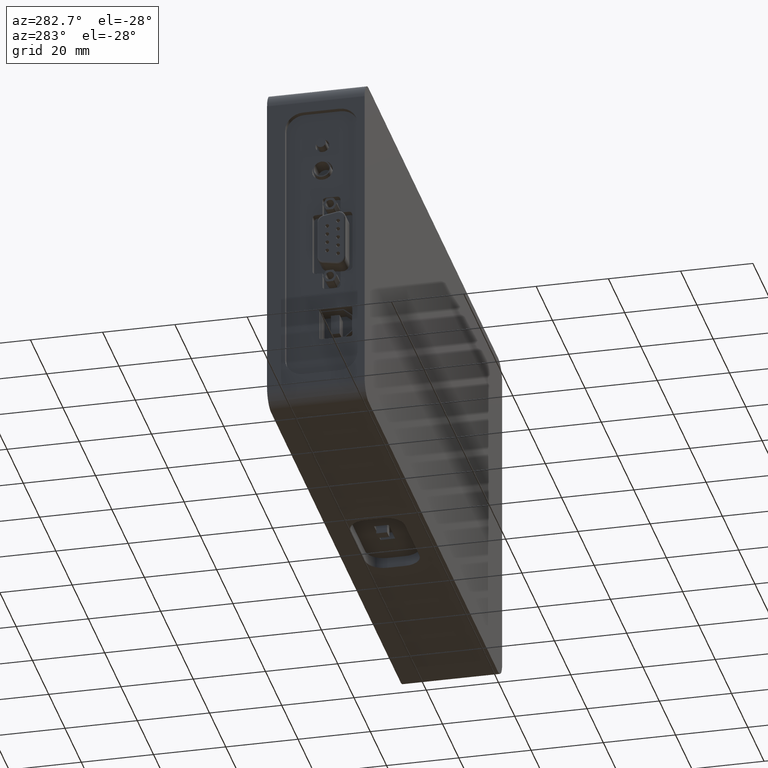
[diagram: clean part render]
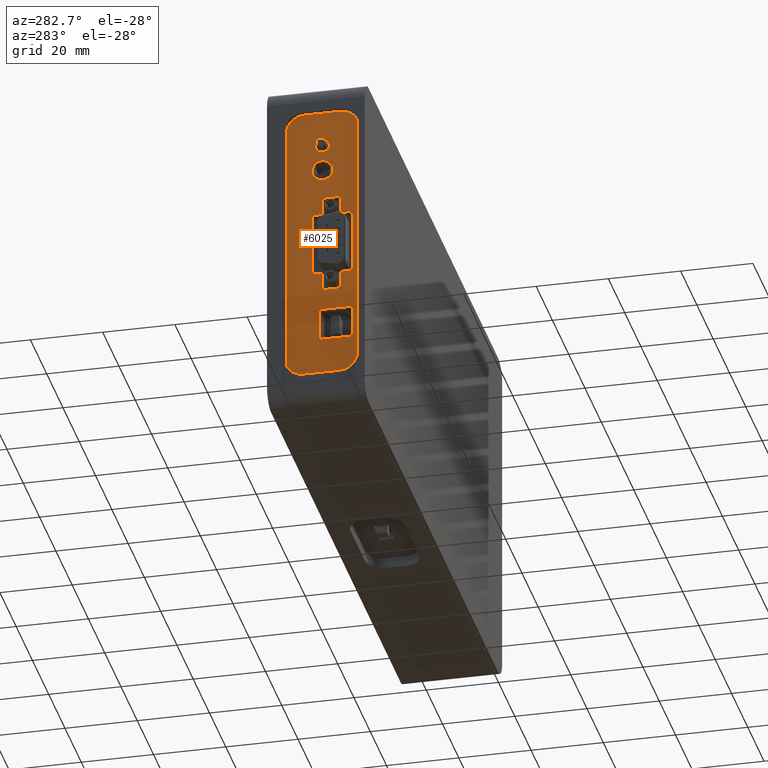
[diagram: same view with one face highlighted and labeled with its STEP entity id]
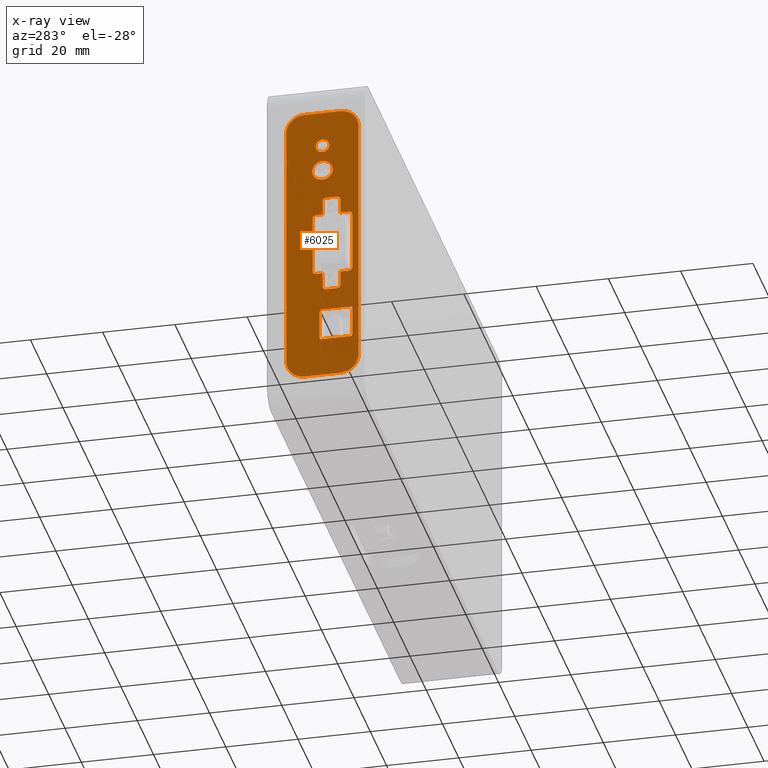
[diagram: x-ray of the same camera — body ghosted, the highlighted face saturated]
A machine part, auxiliary view. The second image highlights one B-rep face of the part: STEP entity #6025.
The next image is the same camera in x-ray: the body ghosted, the highlighted face saturated — about 0% of this face is hidden behind the body in this view.
In plain terms, the highlighted planar face has unit normal (1, 0, 0).
Its self-contained STEP definition (entity closure, byte-faithful):
#2 = EDGE_CURVE ( 'NONE', #4881, #1888, #2039, .T. ) ;
#11 = DIRECTION ( 'NONE',  ( 1.000000000000000000, 0.000000000000000000, 0.000000000000000000 ) ) ;
#24 = ORIENTED_EDGE ( 'NONE', *, *, #2897, .T. ) ;
#33 = ORIENTED_EDGE ( 'NONE', *, *, #2559, .F. ) ;
#37 = CARTESIAN_POINT ( 'NONE',  ( -83.00000000000000000, 7.000000000000000000, -4.500000000000000000 ) ) ;
#64 = VERTEX_POINT ( 'NONE', #6713 ) ;
#73 = EDGE_CURVE ( 'NONE', #5667, #8189, #6624, .T. ) ;
#94 = CARTESIAN_POINT ( 'NONE',  ( -83.00000000000000000, 12.70084974592717586, -28.95355339059327449 ) ) ;
#127 = VERTEX_POINT ( 'NONE', #3152 ) ;
#133 = DIRECTION ( 'NONE',  ( 0.000000000000000000, 1.000000000000000000, 0.000000000000000000 ) ) ;
#149 = DIRECTION ( 'NONE',  ( 0.000000000000000000, 0.7071067811865510144, 0.7071067811865441310 ) ) ;
#189 = LINE ( 'NONE', #8559, #6899 ) ;
#199 = CIRCLE ( 'NONE', #7355, 4.999999999999997335 ) ;
#202 = LINE ( 'NONE', #2267, #3244 ) ;
#221 = ORIENTED_EDGE ( 'NONE', *, *, #6468, .T. ) ;
#227 = EDGE_CURVE ( 'NONE', #4720, #8594, #2170, .T. ) ;
#230 = CARTESIAN_POINT ( 'NONE',  ( -83.00000000000000000, 4.040189574147312612, 8.707106781186546129 ) ) ;
#273 = EDGE_LOOP ( 'NONE', ( #8879, #8371, #3075, #1431, #7123, #7312, #4531, #33, #4779, #3983, #1724, #6395 ) ) ;
#278 = DIRECTION ( 'NONE',  ( 0.000000000000000000, 0.7071067811865484609, -0.7071067811865467956 ) ) ;
#312 = AXIS2_PLACEMENT_3D ( 'NONE', #392, #3188, #3466 ) ;
#319 = VECTOR ( 'NONE', #4511, 1000.000000000000000 ) ;
#327 = CARTESIAN_POINT ( 'NONE',  ( -83.00000000000000000, 17.00000000000000000, 35.00000000000000000 ) ) ;
#332 = CIRCLE ( 'NONE', #2827, 1.000000000000000666 ) ;
#342 = DIRECTION ( 'NONE',  ( 1.000000000000000000, 0.000000000000000000, 0.000000000000000000 ) ) ;
#347 = VERTEX_POINT ( 'NONE', #5873 ) ;
#351 = CARTESIAN_POINT ( 'NONE',  ( -83.00000000000000000, 14.45440313652044928, -8.707106781186546129 ) ) ;
#367 = CIRCLE ( 'NONE', #4617, 1.000000000000001332 ) ;
#376 = DIRECTION ( 'NONE',  ( 1.000000000000000000, 0.000000000000000000, 0.000000000000000000 ) ) ;
#392 = CARTESIAN_POINT ( 'NONE',  ( -83.00000000000000000, 8.000000000000000000, 13.00000000000000000 ) ) ;
#424 = VERTEX_POINT ( 'NONE', #3953 ) ;
#441 = DIRECTION ( 'NONE',  ( -1.000000000000000000, 0.000000000000000000, 0.000000000000000000 ) ) ;
#477 = AXIS2_PLACEMENT_3D ( 'NONE', #813, #3797, #6577 ) ;
#524 = DIRECTION ( 'NONE',  ( 0.000000000000000000, 0.000000000000000000, -1.000000000000000000 ) ) ;
#534 = DIRECTION ( 'NONE',  ( 0.000000000000000000, -0.7071067811865492381, 0.7071067811865457964 ) ) ;
#543 = DIRECTION ( 'NONE',  ( 0.000000000000000000, 0.7071067811865475727, 0.7071067811865475727 ) ) ;
#583 = DIRECTION ( 'NONE',  ( 0.000000000000000000, -6.167905692361979821E-17, -1.000000000000000000 ) ) ;
#609 = CARTESIAN_POINT ( 'NONE',  ( -83.00000000000000000, 12.00000000000000000, -8.165096986985870398E-15 ) ) ;
#633 = CARTESIAN_POINT ( 'NONE',  ( -83.00000000000000000, 7.292893218813452982, -13.70710678118654613 ) ) ;
#670 = EDGE_CURVE ( 'NONE', #8113, #1858, #2247, .T. ) ;
#677 = CARTESIAN_POINT ( 'NONE',  ( -83.00000000000000000, 3.747296355333860074, -8.000000000000000000 ) ) ;
#682 = VERTEX_POINT ( 'NONE', #8370 ) ;
#756 = AXIS2_PLACEMENT_3D ( 'NONE', #609, #8389, #4690 ) ;
#782 = DIRECTION ( 'NONE',  ( 0.000000000000000000, 0.000000000000000000, 1.000000000000000000 ) ) ;
#801 = ORIENTED_EDGE ( 'NONE', *, *, #1327, .F. ) ;
#803 = CIRCLE ( 'NONE', #8247, 1.000000000000001332 ) ;
#813 = CARTESIAN_POINT ( 'NONE',  ( -83.00000000000000000, 12.00000000000000000, 30.00000000000000000 ) ) ;
#848 = DIRECTION ( 'NONE',  ( 0.000000000000000000, -0.7071067811865471286, -0.7071067811865480168 ) ) ;
#871 = DIRECTION ( 'NONE',  ( 0.000000000000000000, 0.000000000000000000, 1.000000000000000000 ) ) ;
#894 = DIRECTION ( 'NONE',  ( 0.000000000000000000, -0.7071067811865471286, -0.7071067811865480168 ) ) ;
#930 = EDGE_CURVE ( 'NONE', #5667, #8083, #5335, .T. ) ;
#942 = DIRECTION ( 'NONE',  ( -1.000000000000000000, 0.000000000000000000, 0.000000000000000000 ) ) ;
#945 = CARTESIAN_POINT ( 'NONE',  ( -83.00000000000000000, 7.000000000000000000, 40.00000000000000000 ) ) ;
#1060 = VERTEX_POINT ( 'NONE', #633 ) ;
#1066 = LINE ( 'NONE', #3084, #319 ) ;
#1086 = CARTESIAN_POINT ( 'NONE',  ( -83.00000000000000000, 17.00000000000000000, -40.00000000000000000 ) ) ;
#1133 = CARTESIAN_POINT ( 'NONE',  ( -83.00000000000000000, 13.74729635533389960, 8.000000000000000000 ) ) ;
#1134 = EDGE_CURVE ( 'NONE', #3550, #5904, #8492, .T. ) ;
#1240 = AXIS2_PLACEMENT_3D ( 'NONE', #8348, #6397, #2044 ) ;
#1285 = ORIENTED_EDGE ( 'NONE', *, *, #7860, .F. ) ;
#1291 = VERTEX_POINT ( 'NONE', #1863 ) ;
#1298 = FACE_BOUND ( 'NONE', #6247, .T. ) ;
#1327 = EDGE_CURVE ( 'NONE', #4720, #5826, #4032, .T. ) ;
#1357 = DIRECTION ( 'NONE',  ( 1.000000000000000000, 0.000000000000000000, 0.000000000000000000 ) ) ;
#1383 = AXIS2_PLACEMENT_3D ( 'NONE', #7467, #6794, #524 ) ;
#1408 = LINE ( 'NONE', #1449, #4903 ) ;
#1431 = ORIENTED_EDGE ( 'NONE', *, *, #2616, .T. ) ;
#1449 = CARTESIAN_POINT ( 'NONE',  ( -83.00000000000000000, 12.84729635533390102, -14.55000000000000071 ) ) ;
#1505 = CARTESIAN_POINT ( 'NONE',  ( -83.00000000000000000, 7.873648177666930259, -9.000000000000000000 ) ) ;
#1535 = CIRCLE ( 'NONE', #7661, 0.4999999999999994449 ) ;
#1544 = LINE ( 'NONE', #4297, #5142 ) ;
#1584 = CARTESIAN_POINT ( 'NONE',  ( -83.00000000000000000, 4.040189574147312612, -8.707106781186547906 ) ) ;
#1625 = VERTEX_POINT ( 'NONE', #8576 ) ;
#1643 = VERTEX_POINT ( 'NONE', #3089 ) ;
#1649 = EDGE_CURVE ( 'NONE', #7842, #6325, #5424, .T. ) ;
#1678 = CIRCLE ( 'NONE', #1240, 1.000000000000001332 ) ;
#1684 = CARTESIAN_POINT ( 'NONE',  ( -83.00000000000000000, 13.74729635533389960, -9.000000000000000000 ) ) ;
#1724 = ORIENTED_EDGE ( 'NONE', *, *, #2084, .F. ) ;
#1744 = AXIS2_PLACEMENT_3D ( 'NONE', #2989, #4504, #4326 ) ;
#1760 = EDGE_CURVE ( 'NONE', #4141, #1060, #1971, .T. ) ;
#1770 = ORIENTED_EDGE ( 'NONE', *, *, #9025, .F. ) ;
#1800 = CARTESIAN_POINT ( 'NONE',  ( -83.00000000000000000, 3.893742964740585233, -20.14644660940672694 ) ) ;
#1820 = CIRCLE ( 'NONE', #6059, 0.4999999999999994449 ) ;
#1858 = VERTEX_POINT ( 'NONE', #8252 ) ;
#1863 = CARTESIAN_POINT ( 'NONE',  ( -83.00000000000000000, 12.34729635533389924, -20.00000000000000000 ) ) ;
#1876 = EDGE_CURVE ( 'NONE', #5797, #8189, #803, .T. ) ;
#1883 = CARTESIAN_POINT ( 'NONE',  ( -83.00000000000000000, 12.00000000000000000, 31.89999999999999858 ) ) ;
#1888 = VERTEX_POINT ( 'NONE', #2859 ) ;
#1902 = DIRECTION ( 'NONE',  ( -1.000000000000000000, 0.000000000000000000, 0.000000000000000000 ) ) ;
#1909 = EDGE_CURVE ( 'NONE', #5330, #64, #4158, .T. ) ;
#1910 = CARTESIAN_POINT ( 'NONE',  ( -83.00000000000000000, 11.00000000000000000, 13.00000000000000000 ) ) ;
#1912 = DIRECTION ( 'NONE',  ( -1.000000000000000000, 0.000000000000000000, 0.000000000000000000 ) ) ;
#1954 = CIRCLE ( 'NONE', #4896, 2.849999999999998312 ) ;
#1971 = CIRCLE ( 'NONE', #5906, 1.000000000000001332 ) ;
#1979 = ORIENTED_EDGE ( 'NONE', *, *, #2215, .T. ) ;
#1980 = CIRCLE ( 'NONE', #8261, 1.000000000000000000 ) ;
#1985 = CARTESIAN_POINT ( 'NONE',  ( -83.00000000000000000, 7.000000000000000000, 9.000000000000000000 ) ) ;
#1993 = EDGE_CURVE ( 'NONE', #2083, #3309, #5333, .T. ) ;
#2009 = AXIS2_PLACEMENT_3D ( 'NONE', #6367, #8363, #4765 ) ;
#2039 = CIRCLE ( 'NONE', #1744, 2.849999999999998312 ) ;
#2044 = DIRECTION ( 'NONE',  ( 0.000000000000000000, 0.7071067811865475727, 0.7071067811865475727 ) ) ;
#2072 = ORIENTED_EDGE ( 'NONE', *, *, #670, .T. ) ;
#2074 = DIRECTION ( 'NONE',  ( 0.000000000000000000, 1.000000000000000000, -1.387778780781445478E-15 ) ) ;
#2083 = VERTEX_POINT ( 'NONE', #2748 ) ;
#2084 = EDGE_CURVE ( 'NONE', #127, #4942, #2691, .T. ) ;
#2159 = VERTEX_POINT ( 'NONE', #6232 ) ;
#2167 = EDGE_CURVE ( 'NONE', #2305, #4815, #8998, .T. ) ;
#2170 = LINE ( 'NONE', #6330, #5035 ) ;
#2203 = DIRECTION ( 'NONE',  ( 0.000000000000000000, 0.000000000000000000, 1.000000000000000000 ) ) ;
#2215 = EDGE_CURVE ( 'NONE', #1643, #3550, #3663, .T. ) ;
#2217 = ORIENTED_EDGE ( 'NONE', *, *, #5150, .F. ) ;
#2219 = ORIENTED_EDGE ( 'NONE', *, *, #2623, .F. ) ;
#2223 = EDGE_CURVE ( 'NONE', #1888, #4881, #1954, .T. ) ;
#2234 = CIRCLE ( 'NONE', #477, 1.899999999999999023 ) ;
#2247 = LINE ( 'NONE', #7141, #2978 ) ;
#2252 = DIRECTION ( 'NONE',  ( -1.000000000000000000, 0.000000000000000000, 0.000000000000000000 ) ) ;
#2267 = CARTESIAN_POINT ( 'NONE',  ( -83.00000000000000000, 9.500000000000000000, 9.000000000000000000 ) ) ;
#2305 = VERTEX_POINT ( 'NONE', #5771 ) ;
#2335 = VERTEX_POINT ( 'NONE', #3897 ) ;
#2419 = CIRCLE ( 'NONE', #6516, 0.5000000000000006661 ) ;
#2455 = CARTESIAN_POINT ( 'NONE',  ( -83.00000000000000000, 7.000000000000000000, -13.00000000000000000 ) ) ;
#2486 = EDGE_CURVE ( 'NONE', #5001, #8605, #3138, .T. ) ;
#2507 = EDGE_LOOP ( 'NONE', ( #24, #7799 ) ) ;
#2541 = CARTESIAN_POINT ( 'NONE',  ( -83.00000000000000000, 7.292893218813452982, 13.70710678118654613 ) ) ;
#2545 = VECTOR ( 'NONE', #133, 1000.000000000000000 ) ;
#2553 = CARTESIAN_POINT ( 'NONE',  ( -83.00000000000000000, 4.247296355333859630, -20.50000000000000000 ) ) ;
#2557 = ORIENTED_EDGE ( 'NONE', *, *, #2223, .T. ) ;
#2559 = EDGE_CURVE ( 'NONE', #8605, #347, #1820, .T. ) ;
#2587 = DIRECTION ( 'NONE',  ( 0.000000000000000000, -3.013462495411140308E-16, -1.000000000000000000 ) ) ;
#2608 = DIRECTION ( 'NONE',  ( 0.000000000000000000, 0.000000000000000000, -1.000000000000000000 ) ) ;
#2616 = EDGE_CURVE ( 'NONE', #5247, #3309, #1408, .T. ) ;
#2623 = EDGE_CURVE ( 'NONE', #8083, #9045, #1678, .T. ) ;
#2657 = DIRECTION ( 'NONE',  ( -1.000000000000000000, 0.000000000000000000, 0.000000000000000000 ) ) ;
#2689 = VERTEX_POINT ( 'NONE', #677 ) ;
#2691 = CIRCLE ( 'NONE', #5473, 0.4999999999999994449 ) ;
#2720 = EDGE_CURVE ( 'NONE', #1643, #2826, #3587, .T. ) ;
#2748 = CARTESIAN_POINT ( 'NONE',  ( -83.00000000000000000, 12.70084974592717586, -20.14644660940672694 ) ) ;
#2760 = VERTEX_POINT ( 'NONE', #945 ) ;
#2764 = CARTESIAN_POINT ( 'NONE',  ( -83.00000000000000000, 4.747296355333860518, 8.000000000000000000 ) ) ;
#2778 = CARTESIAN_POINT ( 'NONE',  ( -83.00000000000000000, 7.000000000000000000, 35.00000000000000000 ) ) ;
#2810 = FACE_BOUND ( 'NONE', #273, .T. ) ;
#2821 = DIRECTION ( 'NONE',  ( -1.000000000000000000, 0.000000000000000000, 0.000000000000000000 ) ) ;
#2826 = VERTEX_POINT ( 'NONE', #1584 ) ;
#2827 = AXIS2_PLACEMENT_3D ( 'NONE', #7932, #942, #848 ) ;
#2830 = DIRECTION ( 'NONE',  ( 0.000000000000000000, -0.7071067811865475727, -0.7071067811865475727 ) ) ;
#2837 = VECTOR ( 'NONE', #2608, 1000.000000000000000 ) ;
#2845 = EDGE_CURVE ( 'NONE', #5001, #4942, #4382, .T. ) ;
#2859 = CARTESIAN_POINT ( 'NONE',  ( -83.00000000000000000, 12.00000000000000000, 25.34999999999999787 ) ) ;
#2895 = EDGE_CURVE ( 'NONE', #5994, #5330, #7088, .T. ) ;
#2897 = EDGE_CURVE ( 'NONE', #5594, #6332, #8542, .T. ) ;
#2942 = EDGE_CURVE ( 'NONE', #2159, #127, #1535, .T. ) ;
#2978 = VECTOR ( 'NONE', #871, 1000.000000000000000 ) ;
#2989 = CARTESIAN_POINT ( 'NONE',  ( -83.00000000000000000, 12.00000000000000000, 22.50000000000000000 ) ) ;
#3075 = ORIENTED_EDGE ( 'NONE', *, *, #7539, .F. ) ;
#3084 = CARTESIAN_POINT ( 'NONE',  ( -83.00000000000000000, 7.000000000000000000, 40.00000000000000000 ) ) ;
#3089 = CARTESIAN_POINT ( 'NONE',  ( -83.00000000000000000, 4.747296355333860518, -9.000000000000000000 ) ) ;
#3107 = ORIENTED_EDGE ( 'NONE', *, *, #2, .T. ) ;
#3108 = AXIS2_PLACEMENT_3D ( 'NONE', #8451, #6229, #2830 ) ;
#3110 = EDGE_LOOP ( 'NONE', ( #5175, #1770, #8235, #4636, #6601, #4093, #7442, #3900 ) ) ;
#3127 = EDGE_CURVE ( 'NONE', #2159, #5013, #8432, .T. ) ;
#3138 = CIRCLE ( 'NONE', #3738, 0.4999999999999994449 ) ;
#3152 = CARTESIAN_POINT ( 'NONE',  ( -83.00000000000000000, 3.893742964740585233, -28.95355339059327449 ) ) ;
#3179 = EDGE_CURVE ( 'NONE', #5177, #5013, #2419, .T. ) ;
#3182 = CIRCLE ( 'NONE', #2009, 1.000000000000000000 ) ;
#3187 = CARTESIAN_POINT ( 'NONE',  ( -83.00000000000000000, 4.747296355333860518, 8.000000000000000000 ) ) ;
#3188 = DIRECTION ( 'NONE',  ( -1.000000000000000000, 0.000000000000000000, 0.000000000000000000 ) ) ;
#3232 = CARTESIAN_POINT ( 'NONE',  ( -83.00000000000000000, 14.74729635533389960, -8.000000000000000000 ) ) ;
#3244 = VECTOR ( 'NONE', #7018, 1000.000000000000000 ) ;
#3255 = CIRCLE ( 'NONE', #3108, 1.000000000000001332 ) ;
#3268 = ORIENTED_EDGE ( 'NONE', *, *, #4990, .T. ) ;
#3274 = DIRECTION ( 'NONE',  ( -1.000000000000000000, 0.000000000000000000, 0.000000000000000000 ) ) ;
#3309 = VERTEX_POINT ( 'NONE', #7505 ) ;
#3312 = CIRCLE ( 'NONE', #5657, 1.000000000000001332 ) ;
#3319 = VECTOR ( 'NONE', #8159, 1000.000000000000000 ) ;
#3328 = ORIENTED_EDGE ( 'NONE', *, *, #3481, .F. ) ;
#3334 = CARTESIAN_POINT ( 'NONE',  ( -83.00000000000000000, 12.00000000000000000, 28.10000000000000142 ) ) ;
#3433 = EDGE_CURVE ( 'NONE', #8969, #8244, #367, .T. ) ;
#3463 = CARTESIAN_POINT ( 'NONE',  ( -83.00000000000000000, 7.873648177666930259, -29.10000000000000142 ) ) ;
#3466 = DIRECTION ( 'NONE',  ( 0.000000000000000000, -0.7071067811865475727, 0.7071067811865475727 ) ) ;
#3481 = EDGE_CURVE ( 'NONE', #8244, #6351, #8699, .T. ) ;
#3482 = ORIENTED_EDGE ( 'NONE', *, *, #1909, .F. ) ;
#3506 = FACE_BOUND ( 'NONE', #8475, .T. ) ;
#3525 = CARTESIAN_POINT ( 'NONE',  ( -83.00000000000000000, 3.747296355333860074, 4.500000000000000000 ) ) ;
#3530 = AXIS2_PLACEMENT_3D ( 'NONE', #2778, #1357, #4755 ) ;
#3550 = VERTEX_POINT ( 'NONE', #4363 ) ;
#3585 = VECTOR ( 'NONE', #5803, 1000.000000000000000 ) ;
#3587 = CIRCLE ( 'NONE', #4030, 1.000000000000000666 ) ;
#3588 = EDGE_CURVE ( 'NONE', #8113, #8058, #1980, .T. ) ;
#3619 = CARTESIAN_POINT ( 'NONE',  ( -83.00000000000000000, 2.000000000000000000, 35.00000000000000000 ) ) ;
#3663 = LINE ( 'NONE', #1505, #2545 ) ;
#3704 = VECTOR ( 'NONE', #4563, 1000.000000000000000 ) ;
#3738 = AXIS2_PLACEMENT_3D ( 'NONE', #2553, #8269, #534 ) ;
#3790 = LINE ( 'NONE', #3832, #4875 ) ;
#3797 = DIRECTION ( 'NONE',  ( 1.000000000000000000, 0.000000000000000000, 0.000000000000000000 ) ) ;
#3832 = CARTESIAN_POINT ( 'NONE',  ( -83.00000000000000000, 12.42364817766690166, -20.00000000000000000 ) ) ;
#3885 = CARTESIAN_POINT ( 'NONE',  ( -83.00000000000000000, 4.247296355333859630, -28.60000000000000142 ) ) ;
#3890 = AXIS2_PLACEMENT_3D ( 'NONE', #2764, #5562, #8336 ) ;
#3897 = CARTESIAN_POINT ( 'NONE',  ( -83.00000000000000000, 22.00000000000000000, -35.00000000000000000 ) ) ;
#3900 = ORIENTED_EDGE ( 'NONE', *, *, #5540, .F. ) ;
#3908 = CARTESIAN_POINT ( 'NONE',  ( -83.00000000000000000, 3.747296355333860074, -20.50000000000000000 ) ) ;
#3926 = EDGE_CURVE ( 'NONE', #5994, #2689, #6231, .T. ) ;
#3953 = CARTESIAN_POINT ( 'NONE',  ( -83.00000000000000000, 17.00000000000000000, 40.00000000000000000 ) ) ;
#3983 = ORIENTED_EDGE ( 'NONE', *, *, #2845, .T. ) ;
#3987 = DIRECTION ( 'NONE',  ( -1.000000000000000000, 0.000000000000000000, 0.000000000000000000 ) ) ;
#4009 = AXIS2_PLACEMENT_3D ( 'NONE', #8970, #11, #2074 ) ;
#4014 = CARTESIAN_POINT ( 'NONE',  ( -83.00000000000000000, 13.74729635533389960, 9.000000000000000000 ) ) ;
#4030 = AXIS2_PLACEMENT_3D ( 'NONE', #5573, #7936, #894 ) ;
#4032 = CIRCLE ( 'NONE', #7234, 1.000000000000001332 ) ;
#4093 = ORIENTED_EDGE ( 'NONE', *, *, #4629, .F. ) ;
#4124 = DIRECTION ( 'NONE',  ( 0.000000000000000000, -0.7071067811865492381, -0.7071067811865457964 ) ) ;
#4141 = VERTEX_POINT ( 'NONE', #4621 ) ;
#4144 = ORIENTED_EDGE ( 'NONE', *, *, #4372, .F. ) ;
#4150 = CARTESIAN_POINT ( 'NONE',  ( -83.00000000000000000, 12.34729635533389924, -20.50000000000000000 ) ) ;
#4158 = CIRCLE ( 'NONE', #3890, 0.9999999999999995559 ) ;
#4164 = DIRECTION ( 'NONE',  ( 0.000000000000000000, 0.7071067811865475727, 0.7071067811865475727 ) ) ;
#4201 = DIRECTION ( 'NONE',  ( -1.000000000000000000, 0.000000000000000000, 0.000000000000000000 ) ) ;
#4220 = ORIENTED_EDGE ( 'NONE', *, *, #1134, .T. ) ;
#4234 = ORIENTED_EDGE ( 'NONE', *, *, #2167, .T. ) ;
#4297 = CARTESIAN_POINT ( 'NONE',  ( -83.00000000000000000, 22.00000000000000000, 35.00000000000000000 ) ) ;
#4326 = DIRECTION ( 'NONE',  ( 0.000000000000000000, 0.000000000000000000, -1.000000000000000000 ) ) ;
#4354 = DIRECTION ( 'NONE',  ( 0.000000000000000000, 0.000000000000000000, -1.000000000000000000 ) ) ;
#4363 = CARTESIAN_POINT ( 'NONE',  ( -83.00000000000000000, 7.000000000000000000, -9.000000000000000000 ) ) ;
#4372 = EDGE_CURVE ( 'NONE', #5826, #1858, #3312, .T. ) ;
#4382 = LINE ( 'NONE', #7165, #3585 ) ;
#4402 = CARTESIAN_POINT ( 'NONE',  ( -83.00000000000000000, 12.00000000000000000, 19.65000000000000213 ) ) ;
#4452 = CARTESIAN_POINT ( 'NONE',  ( -83.00000000000000000, 13.74729635533389960, -8.000000000000000000 ) ) ;
#4504 = DIRECTION ( 'NONE',  ( 1.000000000000000000, 0.000000000000000000, 0.000000000000000000 ) ) ;
#4508 = CARTESIAN_POINT ( 'NONE',  ( -83.00000000000000000, 4.247296355333859630, -28.60000000000000142 ) ) ;
#4511 = DIRECTION ( 'NONE',  ( 0.000000000000000000, -1.000000000000000000, 0.000000000000000000 ) ) ;
#4519 = CARTESIAN_POINT ( 'NONE',  ( -83.00000000000000000, 14.45440313652044750, 8.707106781186546129 ) ) ;
#4531 = ORIENTED_EDGE ( 'NONE', *, *, #8482, .T. ) ;
#4563 = DIRECTION ( 'NONE',  ( 0.000000000000000000, 1.000000000000000000, -1.110223024625159992E-16 ) ) ;
#4610 = DIRECTION ( 'NONE',  ( 0.000000000000000000, -0.7071067811865479058, 0.7071067811865471286 ) ) ;
#4617 = AXIS2_PLACEMENT_3D ( 'NONE', #8911, #2657, #5647 ) ;
#4621 = CARTESIAN_POINT ( 'NONE',  ( -83.00000000000000000, 8.000000000000000000, -14.00000000000000000 ) ) ;
#4629 = EDGE_CURVE ( 'NONE', #6325, #7373, #4775, .T. ) ;
#4636 = ORIENTED_EDGE ( 'NONE', *, *, #8828, .F. ) ;
#4644 = CARTESIAN_POINT ( 'NONE',  ( -83.00000000000000000, 17.00000000000000000, -40.00000000000000000 ) ) ;
#4675 = EDGE_CURVE ( 'NONE', #4141, #6351, #5388, .T. ) ;
#4682 = DIRECTION ( 'NONE',  ( 0.000000000000000000, 0.7071067811865510144, -0.7071067811865441310 ) ) ;
#4690 = DIRECTION ( 'NONE',  ( 0.000000000000000000, 1.000000000000000000, 0.000000000000000000 ) ) ;
#4720 = VERTEX_POINT ( 'NONE', #4014 ) ;
#4736 = VECTOR ( 'NONE', #5036, 1000.000000000000000 ) ;
#4753 = CARTESIAN_POINT ( 'NONE',  ( -83.00000000000000000, 4.247296355333859630, -20.50000000000000000 ) ) ;
#4755 = DIRECTION ( 'NONE',  ( 0.000000000000000000, -1.000000000000000000, 1.387778780781445676E-15 ) ) ;
#4762 = EDGE_CURVE ( 'NONE', #1291, #2083, #6973, .T. ) ;
#4765 = DIRECTION ( 'NONE',  ( 0.000000000000000000, 0.7071067811865484609, -0.7071067811865467956 ) ) ;
#4775 = CIRCLE ( 'NONE', #7113, 4.999999999999997335 ) ;
#4779 = ORIENTED_EDGE ( 'NONE', *, *, #2486, .F. ) ;
#4815 = VERTEX_POINT ( 'NONE', #1985 ) ;
#4841 = CIRCLE ( 'NONE', #3530, 5.000000000000000000 ) ;
#4862 = VECTOR ( 'NONE', #2203, 1000.000000000000000 ) ;
#4875 = VECTOR ( 'NONE', #6571, 1000.000000000000000 ) ;
#4881 = VERTEX_POINT ( 'NONE', #4402 ) ;
#4885 = AXIS2_PLACEMENT_3D ( 'NONE', #5061, #5695, #149 ) ;
#4896 = AXIS2_PLACEMENT_3D ( 'NONE', #6999, #7681, #4354 ) ;
#4903 = VECTOR ( 'NONE', #6265, 1000.000000000000000 ) ;
#4917 = LINE ( 'NONE', #5053, #4862 ) ;
#4942 = VERTEX_POINT ( 'NONE', #5783 ) ;
#4963 = DIRECTION ( 'NONE',  ( 0.000000000000000000, -1.000000000000000000, 0.000000000000000000 ) ) ;
#4990 = EDGE_CURVE ( 'NONE', #682, #8045, #7496, .T. ) ;
#5001 = VERTEX_POINT ( 'NONE', #3908 ) ;
#5013 = VERTEX_POINT ( 'NONE', #6770 ) ;
#5035 = VECTOR ( 'NONE', #4963, 1000.000000000000000 ) ;
#5036 = DIRECTION ( 'NONE',  ( 0.000000000000000000, 0.000000000000000000, -1.000000000000000000 ) ) ;
#5053 = CARTESIAN_POINT ( 'NONE',  ( -83.00000000000000000, 12.00000000000000000, -7.000000000000000000 ) ) ;
#5061 = CARTESIAN_POINT ( 'NONE',  ( -83.00000000000000000, 12.34729635533389924, -20.50000000000000000 ) ) ;
#5089 = ORIENTED_EDGE ( 'NONE', *, *, #8450, .F. ) ;
#5142 = VECTOR ( 'NONE', #6438, 1000.000000000000000 ) ;
#5150 = EDGE_CURVE ( 'NONE', #8058, #8045, #3182, .T. ) ;
#5175 = ORIENTED_EDGE ( 'NONE', *, *, #7558, .F. ) ;
#5177 = VERTEX_POINT ( 'NONE', #94 ) ;
#5186 = ORIENTED_EDGE ( 'NONE', *, *, #3926, .T. ) ;
#5217 = ORIENTED_EDGE ( 'NONE', *, *, #227, .T. ) ;
#5247 = VERTEX_POINT ( 'NONE', #7765 ) ;
#5289 = CARTESIAN_POINT ( 'NONE',  ( -83.00000000000000000, 2.000000000000000000, -35.00000000000000000 ) ) ;
#5298 = CIRCLE ( 'NONE', #8201, 0.5000000000000006661 ) ;
#5318 = CARTESIAN_POINT ( 'NONE',  ( -83.00000000000000000, 7.873648177666930259, -9.000000000000000000 ) ) ;
#5321 = ORIENTED_EDGE ( 'NONE', *, *, #6137, .T. ) ;
#5330 = VERTEX_POINT ( 'NONE', #230 ) ;
#5333 = CIRCLE ( 'NONE', #4885, 0.5000000000000006661 ) ;
#5335 = CIRCLE ( 'NONE', #6344, 1.000000000000001332 ) ;
#5381 = CARTESIAN_POINT ( 'NONE',  ( -83.00000000000000000, 12.34729635533389924, -28.60000000000000142 ) ) ;
#5388 = LINE ( 'NONE', #7562, #3319 ) ;
#5424 = LINE ( 'NONE', #5289, #8951 ) ;
#5461 = CARTESIAN_POINT ( 'NONE',  ( -83.00000000000000000, 11.00000000000000000, -14.00000000000000000 ) ) ;
#5473 = AXIS2_PLACEMENT_3D ( 'NONE', #4508, #1912, #4124 ) ;
#5540 = EDGE_CURVE ( 'NONE', #2760, #7842, #4841, .T. ) ;
#5562 = DIRECTION ( 'NONE',  ( -1.000000000000000000, 0.000000000000000000, 0.000000000000000000 ) ) ;
#5573 = CARTESIAN_POINT ( 'NONE',  ( -83.00000000000000000, 4.747296355333860518, -8.000000000000000000 ) ) ;
#5594 = VERTEX_POINT ( 'NONE', #3334 ) ;
#5611 = PLANE ( 'NONE',  #756 ) ;
#5631 = VECTOR ( 'NONE', #6254, 1000.000000000000000 ) ;
#5647 = DIRECTION ( 'NONE',  ( 0.000000000000000000, 0.7071067811865475727, -0.7071067811865475727 ) ) ;
#5650 = VECTOR ( 'NONE', #583, 1000.000000000000000 ) ;
#5653 = EDGE_CURVE ( 'NONE', #2335, #1625, #1544, .T. ) ;
#5657 = AXIS2_PLACEMENT_3D ( 'NONE', #6300, #2821, #4164 ) ;
#5667 = VERTEX_POINT ( 'NONE', #7212 ) ;
#5695 = DIRECTION ( 'NONE',  ( -1.000000000000000000, 0.000000000000000000, 0.000000000000000000 ) ) ;
#5771 = CARTESIAN_POINT ( 'NONE',  ( -83.00000000000000000, 7.000000000000000000, 13.00000000000000000 ) ) ;
#5783 = CARTESIAN_POINT ( 'NONE',  ( -83.00000000000000000, 3.747296355333860074, -28.60000000000000142 ) ) ;
#5793 = CARTESIAN_POINT ( 'NONE',  ( -83.00000000000000000, 12.34729635533389924, -28.60000000000000142 ) ) ;
#5797 = VERTEX_POINT ( 'NONE', #2541 ) ;
#5803 = DIRECTION ( 'NONE',  ( 0.000000000000000000, -3.050063254464720219E-16, -1.000000000000000000 ) ) ;
#5826 = VERTEX_POINT ( 'NONE', #4519 ) ;
#5873 = CARTESIAN_POINT ( 'NONE',  ( -83.00000000000000000, 4.247296355333859630, -20.00000000000000000 ) ) ;
#5904 = VERTEX_POINT ( 'NONE', #2455 ) ;
#5906 = AXIS2_PLACEMENT_3D ( 'NONE', #6113, #7428, #8791 ) ;
#5915 = EDGE_CURVE ( 'NONE', #2305, #5797, #6602, .T. ) ;
#5940 = DIRECTION ( 'NONE',  ( 0.000000000000000000, -1.734723475976808080E-16, -1.000000000000000000 ) ) ;
#5963 = DIRECTION ( 'NONE',  ( 0.000000000000000000, 1.000000000000000000, 0.000000000000000000 ) ) ;
#5994 = VERTEX_POINT ( 'NONE', #6837 ) ;
#6025 = ADVANCED_FACE ( 'NONE', ( #1298, #6881, #3506, #2810, #6292 ), #5611, .F. ) ;
#6059 = AXIS2_PLACEMENT_3D ( 'NONE', #4753, #441, #7440 ) ;
#6072 = DIRECTION ( 'NONE',  ( 0.000000000000000000, -0.7071067811865492381, -0.7071067811865457964 ) ) ;
#6112 = CARTESIAN_POINT ( 'NONE',  ( -83.00000000000000000, 12.00000000000000000, 9.000000000000000000 ) ) ;
#6113 = CARTESIAN_POINT ( 'NONE',  ( -83.00000000000000000, 8.000000000000000000, -13.00000000000000000 ) ) ;
#6115 = DIRECTION ( 'NONE',  ( -1.000000000000000000, 0.000000000000000000, 0.000000000000000000 ) ) ;
#6137 = EDGE_CURVE ( 'NONE', #4815, #64, #202, .T. ) ;
#6187 = DIRECTION ( 'NONE',  ( -1.000000000000000000, 0.000000000000000000, 0.000000000000000000 ) ) ;
#6229 = DIRECTION ( 'NONE',  ( -1.000000000000000000, 0.000000000000000000, 0.000000000000000000 ) ) ;
#6231 = LINE ( 'NONE', #3525, #5650 ) ;
#6232 = CARTESIAN_POINT ( 'NONE',  ( -83.00000000000000000, 4.247296355333859630, -29.10000000000000142 ) ) ;
#6247 = EDGE_LOOP ( 'NONE', ( #8286, #8766, #7026, #4234, #5321, #3482, #6875, #5186, #5089, #7653, #1979, #4220, #1285, #6452, #7262, #3328, #6294, #7246, #3268, #2217, #7252, #2072, #4144, #801, #5217, #221, #2219, #9023 ) ) ;
#6248 = AXIS2_PLACEMENT_3D ( 'NONE', #4150, #4201, #8844 ) ;
#6254 = DIRECTION ( 'NONE',  ( 0.000000000000000000, 1.000000000000000000, -2.440050603571769864E-16 ) ) ;
#6258 = VERTEX_POINT ( 'NONE', #4644 ) ;
#6265 = DIRECTION ( 'NONE',  ( 0.000000000000000000, 0.000000000000000000, 1.000000000000000000 ) ) ;
#6292 = FACE_OUTER_BOUND ( 'NONE', #3110, .T. ) ;
#6294 = ORIENTED_EDGE ( 'NONE', *, *, #3433, .F. ) ;
#6300 = CARTESIAN_POINT ( 'NONE',  ( -83.00000000000000000, 13.74729635533389960, 8.000000000000000000 ) ) ;
#6323 = DIRECTION ( 'NONE',  ( 0.000000000000000000, 0.7071067811865475727, -0.7071067811865475727 ) ) ;
#6325 = VERTEX_POINT ( 'NONE', #7458 ) ;
#6330 = CARTESIAN_POINT ( 'NONE',  ( -83.00000000000000000, 9.500000000000000000, 9.000000000000000000 ) ) ;
#6332 = VERTEX_POINT ( 'NONE', #1883 ) ;
#6344 = AXIS2_PLACEMENT_3D ( 'NONE', #1910, #3987, #543 ) ;
#6351 = VERTEX_POINT ( 'NONE', #5461 ) ;
#6367 = CARTESIAN_POINT ( 'NONE',  ( -83.00000000000000000, 13.74729635533389960, -8.000000000000000000 ) ) ;
#6395 = ORIENTED_EDGE ( 'NONE', *, *, #2942, .F. ) ;
#6397 = DIRECTION ( 'NONE',  ( -1.000000000000000000, 0.000000000000000000, 0.000000000000000000 ) ) ;
#6438 = DIRECTION ( 'NONE',  ( 0.000000000000000000, 1.268826313857319964E-16, 1.000000000000000000 ) ) ;
#6452 = ORIENTED_EDGE ( 'NONE', *, *, #1760, .F. ) ;
#6468 = EDGE_CURVE ( 'NONE', #8594, #9045, #189, .T. ) ;
#6516 = AXIS2_PLACEMENT_3D ( 'NONE', #5793, #7114, #7155 ) ;
#6540 = EDGE_CURVE ( 'NONE', #8969, #682, #4917, .T. ) ;
#6571 = DIRECTION ( 'NONE',  ( 0.000000000000000000, -1.000000000000000000, 4.880101207143549589E-16 ) ) ;
#6577 = DIRECTION ( 'NONE',  ( 0.000000000000000000, 0.000000000000000000, -1.000000000000000000 ) ) ;
#6601 = ORIENTED_EDGE ( 'NONE', *, *, #8166, .F. ) ;
#6602 = CIRCLE ( 'NONE', #312, 1.000000000000001332 ) ;
#6624 = LINE ( 'NONE', #6673, #8747 ) ;
#6666 = CARTESIAN_POINT ( 'NONE',  ( -83.00000000000000000, 7.000000000000000000, -35.00000000000000000 ) ) ;
#6673 = CARTESIAN_POINT ( 'NONE',  ( -83.00000000000000000, 12.00000000000000000, 14.00000000000000000 ) ) ;
#6699 = DIRECTION ( 'NONE',  ( -1.000000000000000000, 0.000000000000000000, 0.000000000000000000 ) ) ;
#6713 = CARTESIAN_POINT ( 'NONE',  ( -83.00000000000000000, 4.747296355333860518, 9.000000000000000000 ) ) ;
#6770 = CARTESIAN_POINT ( 'NONE',  ( -83.00000000000000000, 12.34729635533389924, -29.10000000000000142 ) ) ;
#6794 = DIRECTION ( 'NONE',  ( 1.000000000000000000, 0.000000000000000000, 0.000000000000000000 ) ) ;
#6837 = CARTESIAN_POINT ( 'NONE',  ( -83.00000000000000000, 3.747296355333860074, 8.000000000000000000 ) ) ;
#6875 = ORIENTED_EDGE ( 'NONE', *, *, #2895, .F. ) ;
#6881 = FACE_BOUND ( 'NONE', #2507, .T. ) ;
#6899 = VECTOR ( 'NONE', #782, 1000.000000000000000 ) ;
#6931 = DIRECTION ( 'NONE',  ( 0.000000000000000000, -0.7071067811865475727, 0.7071067811865475727 ) ) ;
#6940 = EDGE_CURVE ( 'NONE', #6332, #5594, #2234, .T. ) ;
#6973 = CIRCLE ( 'NONE', #6248, 0.5000000000000006661 ) ;
#6999 = CARTESIAN_POINT ( 'NONE',  ( -83.00000000000000000, 12.00000000000000000, 22.50000000000000000 ) ) ;
#7018 = DIRECTION ( 'NONE',  ( 0.000000000000000000, -1.000000000000000000, 0.000000000000000000 ) ) ;
#7026 = ORIENTED_EDGE ( 'NONE', *, *, #5915, .F. ) ;
#7060 = CARTESIAN_POINT ( 'NONE',  ( -83.00000000000000000, 12.00000000000000000, -13.00000000000000000 ) ) ;
#7088 = CIRCLE ( 'NONE', #8826, 0.9999999999999995559 ) ;
#7113 = AXIS2_PLACEMENT_3D ( 'NONE', #6666, #342, #5940 ) ;
#7114 = DIRECTION ( 'NONE',  ( -1.000000000000000000, 0.000000000000000000, 0.000000000000000000 ) ) ;
#7123 = ORIENTED_EDGE ( 'NONE', *, *, #1993, .F. ) ;
#7141 = CARTESIAN_POINT ( 'NONE',  ( -83.00000000000000000, 14.74729635533389960, -4.500000000000000000 ) ) ;
#7155 = DIRECTION ( 'NONE',  ( 0.000000000000000000, 0.7071067811865510144, -0.7071067811865441310 ) ) ;
#7165 = CARTESIAN_POINT ( 'NONE',  ( -83.00000000000000000, 3.747296355333860074, -10.00000000000000000 ) ) ;
#7212 = CARTESIAN_POINT ( 'NONE',  ( -83.00000000000000000, 11.00000000000000000, 14.00000000000000000 ) ) ;
#7234 = AXIS2_PLACEMENT_3D ( 'NONE', #1133, #1902, #8129 ) ;
#7246 = ORIENTED_EDGE ( 'NONE', *, *, #6540, .T. ) ;
#7252 = ORIENTED_EDGE ( 'NONE', *, *, #3588, .F. ) ;
#7262 = ORIENTED_EDGE ( 'NONE', *, *, #4675, .T. ) ;
#7312 = ORIENTED_EDGE ( 'NONE', *, *, #4762, .F. ) ;
#7355 = AXIS2_PLACEMENT_3D ( 'NONE', #327, #376, #7453 ) ;
#7373 = VERTEX_POINT ( 'NONE', #8610 ) ;
#7428 = DIRECTION ( 'NONE',  ( -1.000000000000000000, 0.000000000000000000, 0.000000000000000000 ) ) ;
#7440 = DIRECTION ( 'NONE',  ( 0.000000000000000000, -0.7071067811865492381, 0.7071067811865457964 ) ) ;
#7442 = ORIENTED_EDGE ( 'NONE', *, *, #1649, .F. ) ;
#7453 = DIRECTION ( 'NONE',  ( 0.000000000000000000, 3.469446951953616161E-15, 1.000000000000000000 ) ) ;
#7458 = CARTESIAN_POINT ( 'NONE',  ( -83.00000000000000000, 2.000000000000000000, -35.00000000000000000 ) ) ;
#7467 = CARTESIAN_POINT ( 'NONE',  ( -83.00000000000000000, 12.00000000000000000, 30.00000000000000000 ) ) ;
#7496 = LINE ( 'NONE', #5318, #7993 ) ;
#7505 = CARTESIAN_POINT ( 'NONE',  ( -83.00000000000000000, 12.84729635533390102, -20.50000000000000000 ) ) ;
#7539 = EDGE_CURVE ( 'NONE', #5247, #5177, #5298, .T. ) ;
#7558 = EDGE_CURVE ( 'NONE', #424, #2760, #1066, .T. ) ;
#7561 = DIRECTION ( 'NONE',  ( -1.000000000000000000, 0.000000000000000000, 0.000000000000000000 ) ) ;
#7562 = CARTESIAN_POINT ( 'NONE',  ( -83.00000000000000000, 9.500000000000000000, -14.00000000000000000 ) ) ;
#7642 = CARTESIAN_POINT ( 'NONE',  ( -83.00000000000000000, 11.00000000000000000, -13.00000000000000000 ) ) ;
#7653 = ORIENTED_EDGE ( 'NONE', *, *, #2720, .F. ) ;
#7661 = AXIS2_PLACEMENT_3D ( 'NONE', #3885, #3274, #6072 ) ;
#7681 = DIRECTION ( 'NONE',  ( 1.000000000000000000, 0.000000000000000000, 0.000000000000000000 ) ) ;
#7710 = CARTESIAN_POINT ( 'NONE',  ( -83.00000000000000000, 11.70710678118654613, -13.70710678118654613 ) ) ;
#7765 = CARTESIAN_POINT ( 'NONE',  ( -83.00000000000000000, 12.84729635533390102, -28.60000000000000142 ) ) ;
#7799 = ORIENTED_EDGE ( 'NONE', *, *, #6940, .T. ) ;
#7842 = VERTEX_POINT ( 'NONE', #3619 ) ;
#7860 = EDGE_CURVE ( 'NONE', #1060, #5904, #3255, .T. ) ;
#7932 = CARTESIAN_POINT ( 'NONE',  ( -83.00000000000000000, 4.747296355333860518, -8.000000000000000000 ) ) ;
#7936 = DIRECTION ( 'NONE',  ( -1.000000000000000000, 0.000000000000000000, 0.000000000000000000 ) ) ;
#7993 = VECTOR ( 'NONE', #5963, 1000.000000000000000 ) ;
#8032 = DIRECTION ( 'NONE',  ( 0.000000000000000000, -1.000000000000000000, 0.000000000000000000 ) ) ;
#8045 = VERTEX_POINT ( 'NONE', #1684 ) ;
#8058 = VERTEX_POINT ( 'NONE', #351 ) ;
#8083 = VERTEX_POINT ( 'NONE', #8585 ) ;
#8113 = VERTEX_POINT ( 'NONE', #3232 ) ;
#8129 = DIRECTION ( 'NONE',  ( 0.000000000000000000, 0.7071067811865475727, 0.7071067811865475727 ) ) ;
#8159 = DIRECTION ( 'NONE',  ( 0.000000000000000000, 1.000000000000000000, 0.000000000000000000 ) ) ;
#8166 = EDGE_CURVE ( 'NONE', #7373, #6258, #8209, .T. ) ;
#8189 = VERTEX_POINT ( 'NONE', #8759 ) ;
#8201 = AXIS2_PLACEMENT_3D ( 'NONE', #5381, #6699, #4682 ) ;
#8209 = LINE ( 'NONE', #1086, #3704 ) ;
#8235 = ORIENTED_EDGE ( 'NONE', *, *, #5653, .F. ) ;
#8244 = VERTEX_POINT ( 'NONE', #7710 ) ;
#8247 = AXIS2_PLACEMENT_3D ( 'NONE', #8383, #7561, #6931 ) ;
#8252 = CARTESIAN_POINT ( 'NONE',  ( -83.00000000000000000, 14.74729635533389960, 8.000000000000000000 ) ) ;
#8261 = AXIS2_PLACEMENT_3D ( 'NONE', #4452, #2252, #278 ) ;
#8269 = DIRECTION ( 'NONE',  ( -1.000000000000000000, 0.000000000000000000, 0.000000000000000000 ) ) ;
#8286 = ORIENTED_EDGE ( 'NONE', *, *, #73, .T. ) ;
#8336 = DIRECTION ( 'NONE',  ( 0.000000000000000000, -0.7071067811865479058, 0.7071067811865471286 ) ) ;
#8348 = CARTESIAN_POINT ( 'NONE',  ( -83.00000000000000000, 11.00000000000000000, 13.00000000000000000 ) ) ;
#8363 = DIRECTION ( 'NONE',  ( -1.000000000000000000, 0.000000000000000000, 0.000000000000000000 ) ) ;
#8370 = CARTESIAN_POINT ( 'NONE',  ( -83.00000000000000000, 12.00000000000000000, -9.000000000000000000 ) ) ;
#8371 = ORIENTED_EDGE ( 'NONE', *, *, #3179, .F. ) ;
#8383 = CARTESIAN_POINT ( 'NONE',  ( -83.00000000000000000, 8.000000000000000000, 13.00000000000000000 ) ) ;
#8389 = DIRECTION ( 'NONE',  ( 1.000000000000000000, 0.000000000000000000, 0.000000000000000000 ) ) ;
#8408 = AXIS2_PLACEMENT_3D ( 'NONE', #7642, #6187, #6323 ) ;
#8432 = LINE ( 'NONE', #3463, #5631 ) ;
#8450 = EDGE_CURVE ( 'NONE', #2826, #2689, #332, .T. ) ;
#8451 = CARTESIAN_POINT ( 'NONE',  ( -83.00000000000000000, 8.000000000000000000, -13.00000000000000000 ) ) ;
#8475 = EDGE_LOOP ( 'NONE', ( #3107, #2557 ) ) ;
#8482 = EDGE_CURVE ( 'NONE', #1291, #347, #3790, .T. ) ;
#8492 = LINE ( 'NONE', #37, #4736 ) ;
#8542 = CIRCLE ( 'NONE', #1383, 1.899999999999999023 ) ;
#8559 = CARTESIAN_POINT ( 'NONE',  ( -83.00000000000000000, 12.00000000000000000, 4.500000000000000000 ) ) ;
#8576 = CARTESIAN_POINT ( 'NONE',  ( -83.00000000000000000, 22.00000000000000000, 35.00000000000000000 ) ) ;
#8585 = CARTESIAN_POINT ( 'NONE',  ( -83.00000000000000000, 11.70710678118654613, 13.70710678118654613 ) ) ;
#8594 = VERTEX_POINT ( 'NONE', #6112 ) ;
#8605 = VERTEX_POINT ( 'NONE', #1800 ) ;
#8610 = CARTESIAN_POINT ( 'NONE',  ( -83.00000000000000000, 7.000000000000000000, -40.00000000000000000 ) ) ;
#8672 = CIRCLE ( 'NONE', #4009, 5.000000000000000888 ) ;
#8699 = CIRCLE ( 'NONE', #8408, 1.000000000000001332 ) ;
#8747 = VECTOR ( 'NONE', #8032, 1000.000000000000000 ) ;
#8759 = CARTESIAN_POINT ( 'NONE',  ( -83.00000000000000000, 8.000000000000000000, 14.00000000000000000 ) ) ;
#8766 = ORIENTED_EDGE ( 'NONE', *, *, #1876, .F. ) ;
#8791 = DIRECTION ( 'NONE',  ( 0.000000000000000000, -0.7071067811865475727, -0.7071067811865475727 ) ) ;
#8826 = AXIS2_PLACEMENT_3D ( 'NONE', #3187, #6115, #4610 ) ;
#8828 = EDGE_CURVE ( 'NONE', #6258, #2335, #8672, .T. ) ;
#8844 = DIRECTION ( 'NONE',  ( 0.000000000000000000, 0.7071067811865510144, 0.7071067811865441310 ) ) ;
#8871 = CARTESIAN_POINT ( 'NONE',  ( -83.00000000000000000, 12.00000000000000000, 13.00000000000000000 ) ) ;
#8879 = ORIENTED_EDGE ( 'NONE', *, *, #3127, .T. ) ;
#8911 = CARTESIAN_POINT ( 'NONE',  ( -83.00000000000000000, 11.00000000000000000, -13.00000000000000000 ) ) ;
#8949 = CARTESIAN_POINT ( 'NONE',  ( -83.00000000000000000, 7.000000000000000000, 7.000000000000000000 ) ) ;
#8951 = VECTOR ( 'NONE', #2587, 1000.000000000000000 ) ;
#8969 = VERTEX_POINT ( 'NONE', #7060 ) ;
#8970 = CARTESIAN_POINT ( 'NONE',  ( -83.00000000000000000, 17.00000000000000000, -35.00000000000000000 ) ) ;
#8998 = LINE ( 'NONE', #8949, #2837 ) ;
#9023 = ORIENTED_EDGE ( 'NONE', *, *, #930, .F. ) ;
#9025 = EDGE_CURVE ( 'NONE', #1625, #424, #199, .T. ) ;
#9045 = VERTEX_POINT ( 'NONE', #8871 ) ;